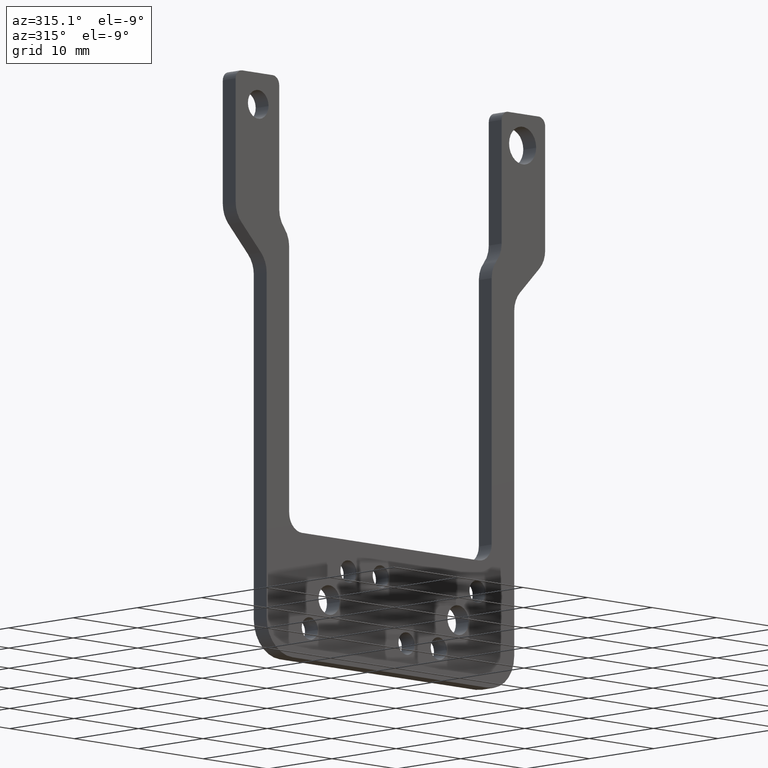
[diagram: clean part render]
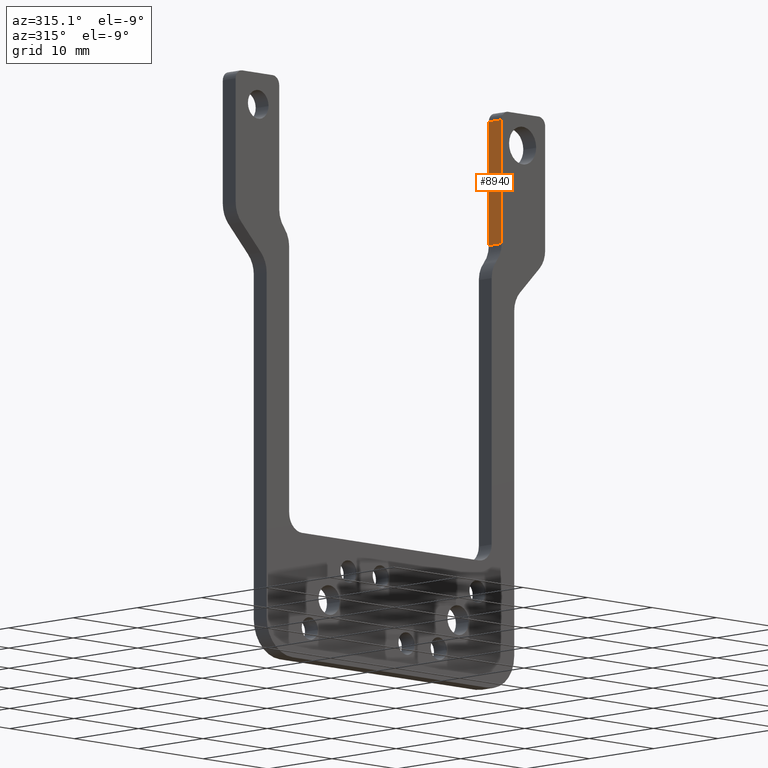
[diagram: same view with one face highlighted and labeled with its STEP entity id]
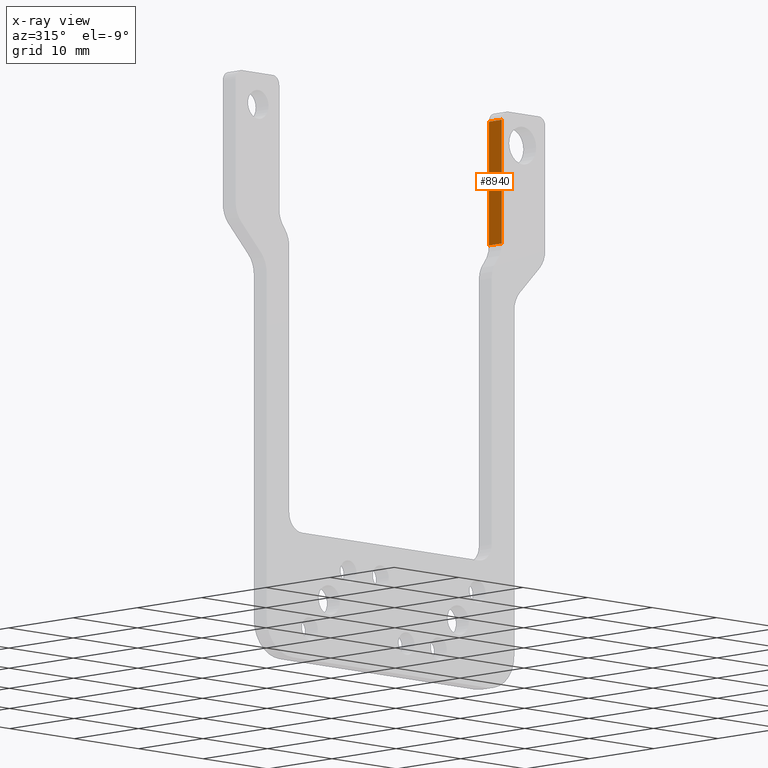
[diagram: x-ray of the same camera — body ghosted, the highlighted face saturated]
A machine part, auxiliary view. The second image highlights one B-rep face of the part: STEP entity #8940.
The next image is the same camera in x-ray: the body ghosted, the highlighted face saturated — about 0% of this face is hidden behind the body in this view.
In plain terms, the highlighted planar face has unit normal (1, 0, 0).
Its self-contained STEP definition (entity closure, byte-faithful):
#3680=CARTESIAN_POINT('',(-17.25,-4.04350538537465E-14,-11.2573593128807
));
#3690=VERTEX_POINT('',#3680);
#3720=CARTESIAN_POINT('',(-17.25,1.14277093486914E-14,3.50000000000001))
;
#3730=DIRECTION('',(0.,-3.51436609374757E-15,-1.));
#3740=VECTOR('',#3730,1.);
#3750=LINE('',#3720,#3740);
#3760=CARTESIAN_POINT('',(-17.25,7.9133432549438E-15,2.50000000000001));
#3770=VERTEX_POINT('',#3760);
#3780=EDGE_CURVE('',#3770,#3690,#3750,.T.);
#6110=CARTESIAN_POINT('',(-17.25,-1.99999999999999,2.50000000000001));
#6120=VERTEX_POINT('',#6110);
#6150=CARTESIAN_POINT('',(-17.25,-1.99999999999999,3.50000000000001));
#6160=DIRECTION('',(0.,-3.51436609374757E-15,-1.));
#6170=VECTOR('',#6160,1.);
#6180=LINE('',#6150,#6170);
#6190=CARTESIAN_POINT('',(-17.25,-2.00000000000004,-11.2573593128807));
#6200=VERTEX_POINT('',#6190);
#6210=EDGE_CURVE('',#6120,#6200,#6180,.T.);
#8730=CARTESIAN_POINT('',(-17.25,-2.37159515887843E-14,-6.49999999999999
));
#8740=DIRECTION('',(-1.,-0.,0.));
#8750=DIRECTION('',(0.,-3.51436609374757E-15,-1.));
#8760=AXIS2_PLACEMENT_3D('',#8730,#8740,#8750);
#8770=PLANE('',#8760);
#8780=ORIENTED_EDGE('',*,*,#6210,.T.);
#8790=CARTESIAN_POINT('',(-17.25,7.9133432549438E-15,2.50000000000001));
#8800=DIRECTION('',(0.,-1.,3.51436609374757E-15));
#8810=VECTOR('',#8800,1.);
#8820=LINE('',#8790,#8810);
#8830=EDGE_CURVE('',#3770,#6120,#8820,.T.);
#8840=ORIENTED_EDGE('',*,*,#8830,.T.);
#8850=ORIENTED_EDGE('',*,*,#3780,.F.);
#8860=CARTESIAN_POINT('',(-17.25,-4.04350538537465E-14,-11.2573593128807
));
#8870=DIRECTION('',(0.,-1.,3.51436609374757E-15));
#8880=VECTOR('',#8870,1.);
#8890=LINE('',#8860,#8880);
#8900=EDGE_CURVE('',#3690,#6200,#8890,.T.);
#8910=ORIENTED_EDGE('',*,*,#8900,.F.);
#8920=EDGE_LOOP('',(#8910,#8850,#8840,#8780));
#8930=FACE_OUTER_BOUND('',#8920,.T.);
#8940=ADVANCED_FACE('',(#8930),#8770,.F.);